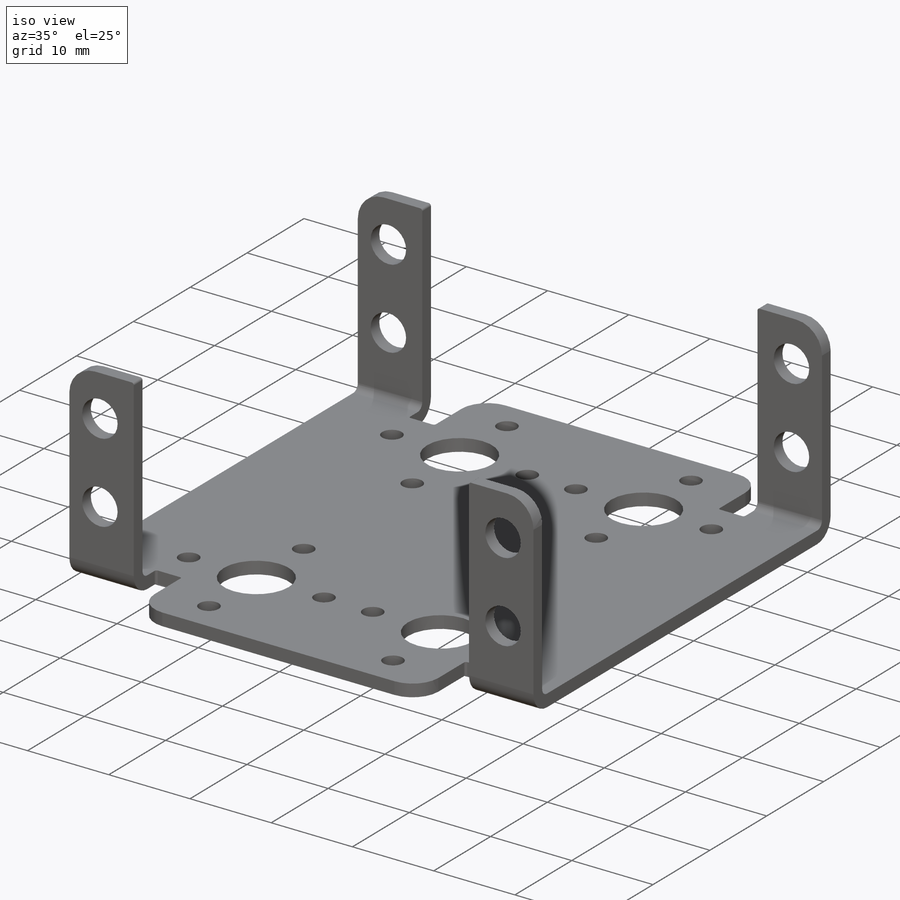
[diagram: iso view]
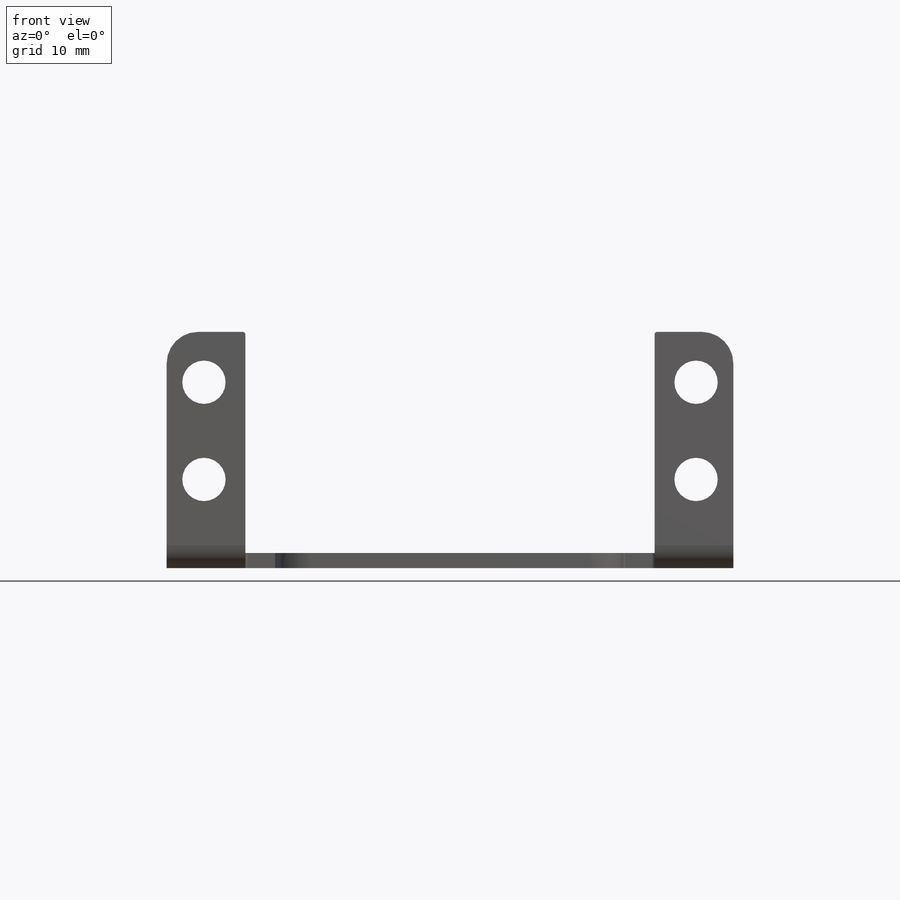
[diagram: front view]
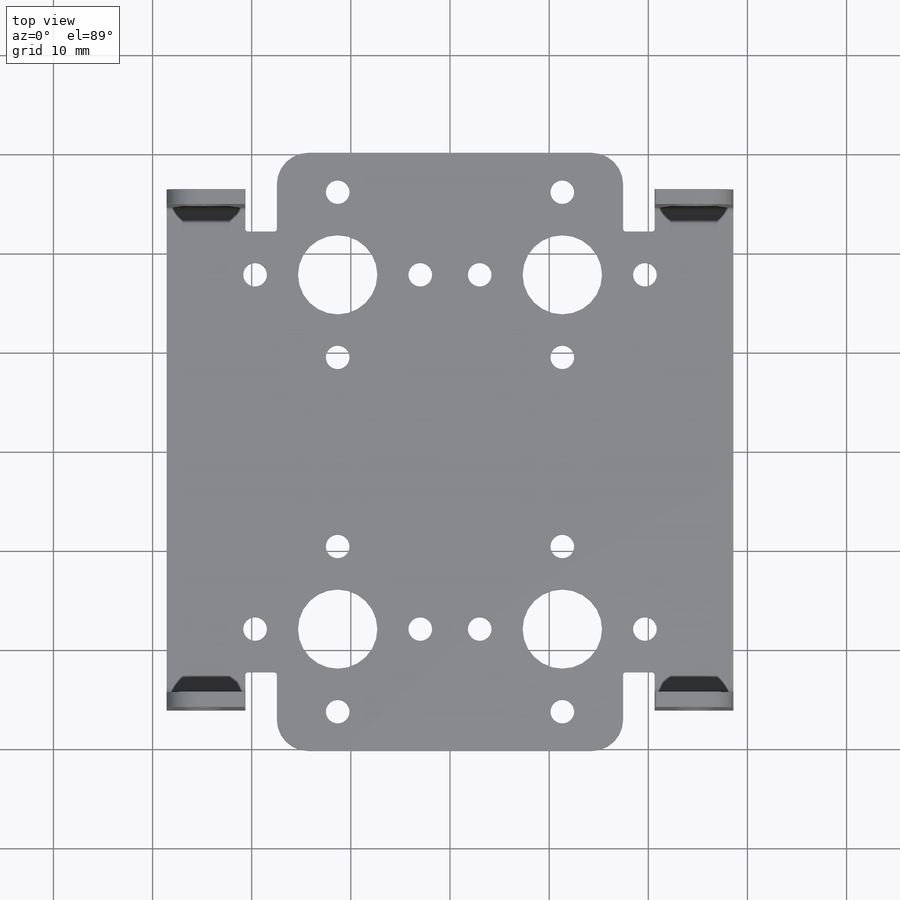
[diagram: top view]
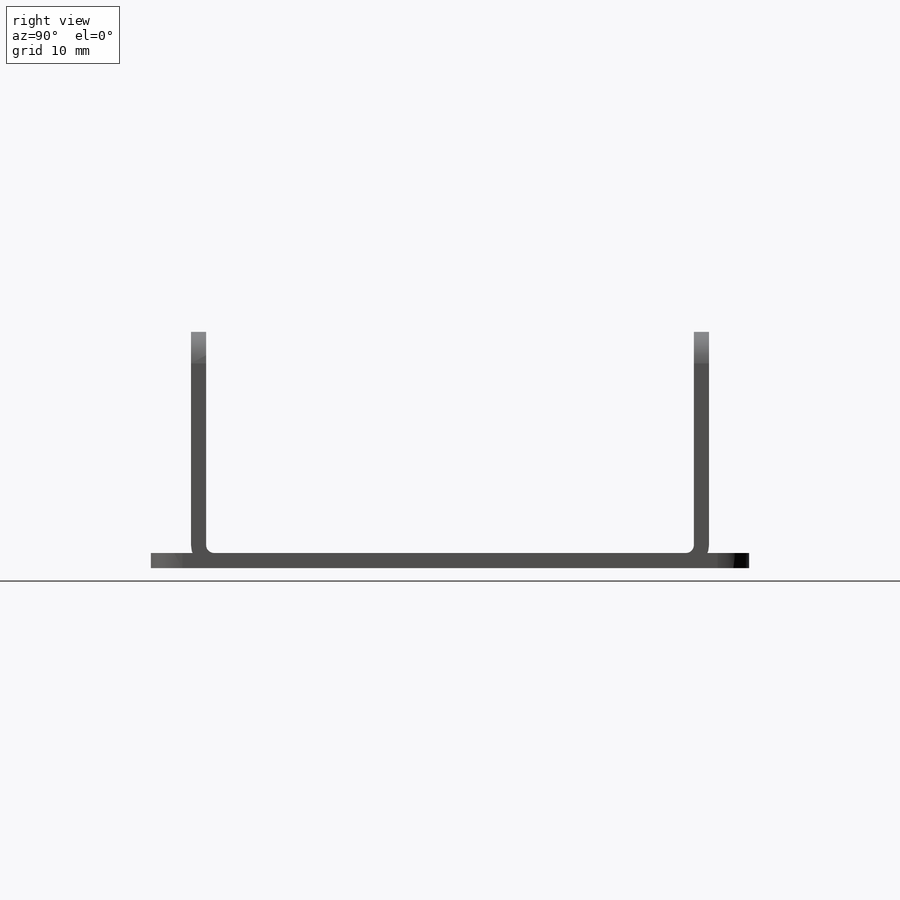
[diagram: right view]
SOLIDWORKS PART (.sldprt)
format: sldprt  version: not decoded by parser v0  size: 485,376 bytes
history: native  units: mm
features: sketch x9, mirror x4, cut_extrude x3, sheet_metal_op x2, fillet x2, material x1 + 4 further entries (+14 scaffold rows collapsed; 1 parser-record rows omitted)
feature tree (40):
  scaffold x14  (default folders/planes/origin — collapsed)
  material  "5052-H32"
  sketch  "Sketch1"  dims[c1.D1=~151.239111mm c2.D1=57.15mm c2.D2=60.325mm]
  sheet_metal_op  "Sheet-Metal1"  Thickness=1.524mm
  sheet_metal_op  "Base-Flange1"
  sketch  "Sketch3"  dims[c1.D1=52.2478mm c1.D2=7.9375mm c1.D3=3.8989mm c1.D4=3.175mm c2.D1=7.9375mm c2.D5=3.175mm]
  cut_extrude  "Extrude1"  [1 undecoded]
  mirror  "Mirror1"
  sketch  "Sketch12"
  sketch  "Sketch13"
  sketch  "Sketch14"
  sketch  "Sketch15"  dims[D1=0.8128mm D4=90.0deg D5=1.0 D8=~0.79375mm D9=~0.79375mm]
  mirror  "EdgeBend2"
  mirror  "EdgeBend3"
  mirror  "EdgeBend4"
  sketch  "Sketch16"  dims[c1.D2=8.001mm c1.D3=2.3876mm c1.D9=8.001mm c1.D10=2.3876mm c1.D12=8.001mm c1.D13=2.3876mm c1.D15=8.001mm c1.D16=2.3876mm c1.D1=16.6624mm c1.D4=12.2936mm c1.D5=17.2466mm c1.D6=22.6568mm c1.D7=35.7378mm c1.D8=16.6624mm c1.D11=16.6624mm c2.D7=35.7378mm c2.D14=16.6624mm]
  cut_extrude  "Extrude2"  [1 undecoded]
  sketch  "Sketch17"  dims[c1.D3=4.3688mm c1.D1=5.08mm c1.D2=9.8044mm c1.D4=49.6316mm c2.D1=8.9408mm]
  cut_extrude  "Extrude3"  [1 undecoded]
  fillet  "Fillet1"  Radius=3.175mm
  fillet  "Fillet2"  Radius=0.254mm
  "Flat-Pattern1"
  sketch  "Bend-Lines1"
  "Flatten-<EdgeBend2>1"
  "Flatten-<EdgeBend3>1"
  "Flatten-<EdgeBend4>1"
  parser-record x1  (decoder bookkeeping rows leaked as tree rows — omitted from the tree; the rows remain in map.json)
decode coverage: 8 of 20 modeling features carry decoded parameters; 4 rows unclassified (native names shown)
note: ~ marks probable driven/reference dimensions
note: 3 parameter values undecoded
summary: no parameter record found for 3 features
note: suppression state not decoded; provenance and decode notes live in map.json
